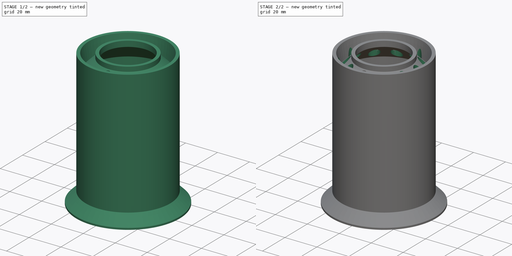
[diagram: build sequence overview — one tinted view per stage of 2, left to right]
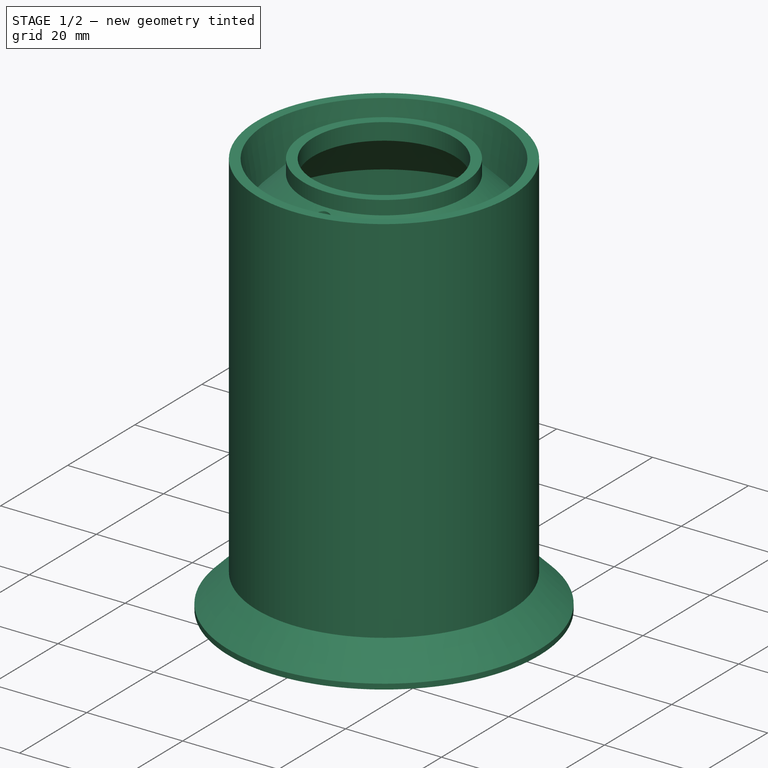
[diagram: stage 1 of 2 — iso view after this stage's code; geometry added in this stage tinted green]
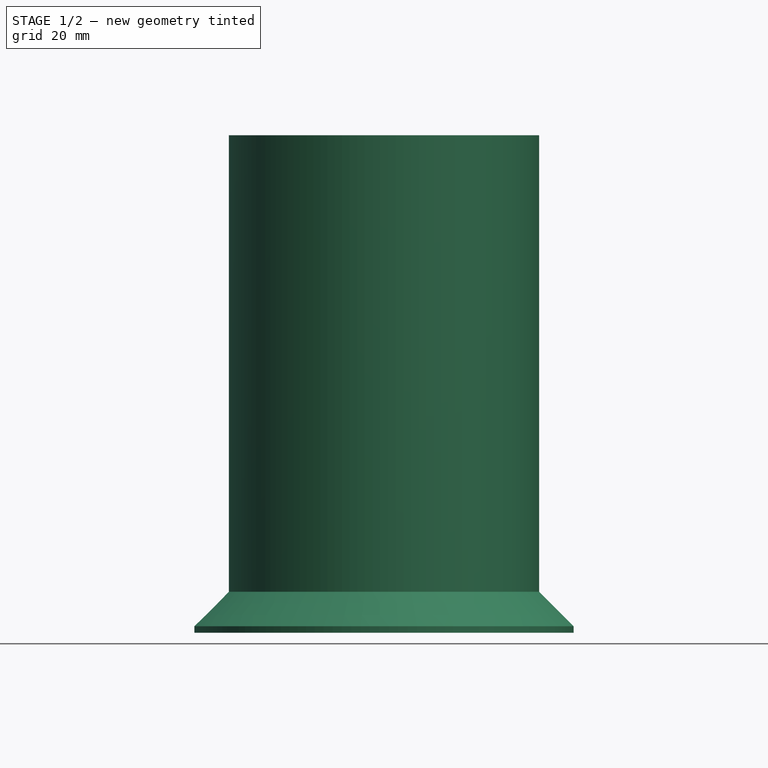
[diagram: stage 1 of 2 — front view after this stage's code; geometry added in this stage tinted green]
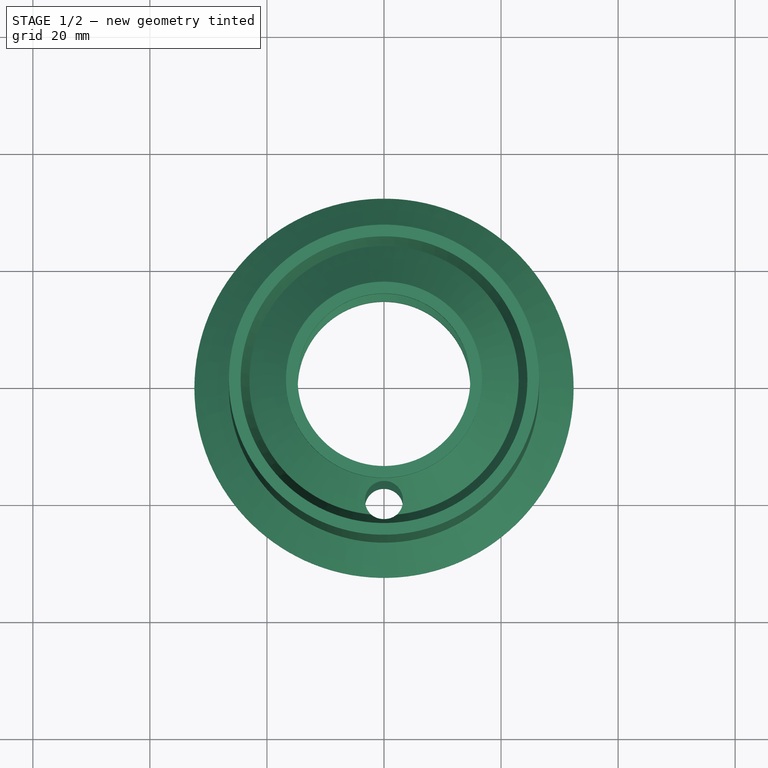
[diagram: stage 1 of 2 — top view after this stage's code; geometry added in this stage tinted green]
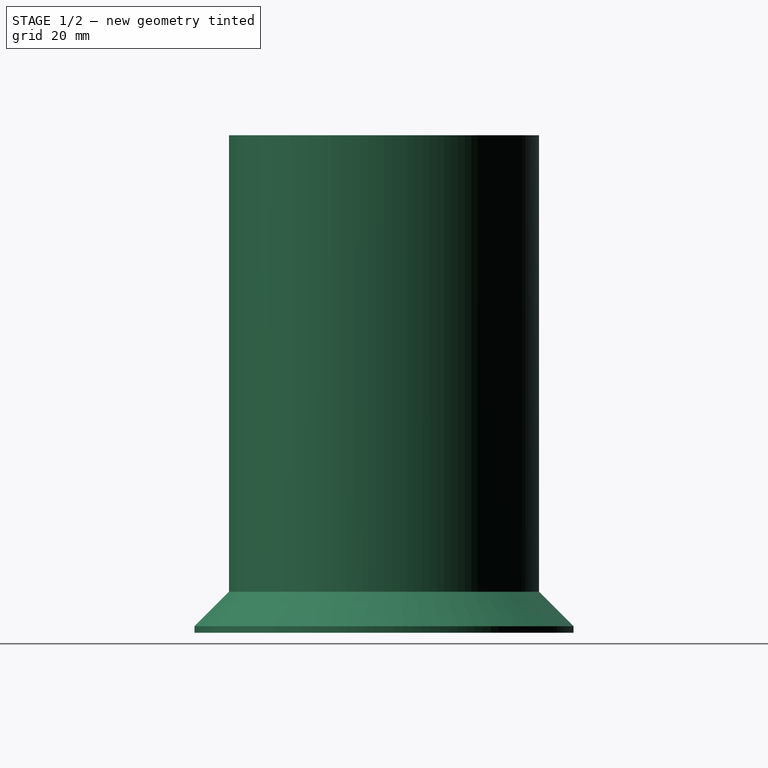
[diagram: stage 1 of 2 — right view after this stage's code; geometry added in this stage tinted green]
FCSTD DOCUMENT  (FreeCAD 0.17R12871 (Git))
Label: 3dp7BaseColorHome
License: All rights reserved
LicenseURL: http://en.wikipedia.org/wiki/All_rights_reserved
objects: Sketcher::SketchObject×2, PartDesign::Revolution×1, PartDesign::Pocket×1, PartDesign::PolarPattern×1, PartDesign::Body×1
note: 8 computed .brp shape members not serialized (recipe doc carries the construction recipe); baked Part::Feature solids carry a one-line shape summary decoded from their .brp

FEATURE [Sketcher::SketchObject] Sketch
  MapMode = 5
  Placement = pos=(0,0,0) rot=(1,0,0;1.5708rad)
  Support = -> [XZ_Plane]
  expr: Constraints[48] = -45
  sketch-geometry (20):
    g0: LineSegment StartX=14.75 StartY=0 StartZ=0 EndX=14.75 EndY=3.5 EndZ=0
    g1: LineSegment StartX=14.75 StartY=85 StartZ=0 EndX=16.75 EndY=85 EndZ=0
    g2: LineSegment StartX=16.75 StartY=85 StartZ=0 EndX=16.75 EndY=82.1 EndZ=0
    g3: LineSegment StartX=16.75 StartY=82.1 StartZ=0 EndX=23 EndY=75.85 EndZ=0
    g4: LineSegment StartX=23 StartY=75.85 StartZ=0 EndX=24.5 EndY=85 EndZ=0
    g5: LineSegment StartX=24.5 StartY=85 StartZ=0 EndX=26.5 EndY=85 EndZ=0
    g6: LineSegment StartX=26.5 StartY=85 StartZ=0 EndX=26.5 EndY=7 EndZ=0
    g7: LineSegment StartX=23 StartY=9.15 StartZ=0 EndX=16.75 EndY=2.9 EndZ=0
    g8: LineSegment StartX=16.75 StartY=2.9 StartZ=0 EndX=16.75 EndY=0 EndZ=0
    g9: LineSegment StartX=16.75 StartY=0 StartZ=0 EndX=14.75 EndY=0 EndZ=0
    g10: LineSegment StartX=14.75 StartY=81.5 StartZ=0 EndX=24.9 EndY=71.35 EndZ=0
    g11: LineSegment StartX=24.9 StartY=71.35 StartZ=0 EndX=24.9 EndY=13.65 EndZ=0
    g12: LineSegment StartX=24.9 StartY=13.65 StartZ=0 EndX=14.75 EndY=3.5 EndZ=0
    g13: LineSegment [constr] StartX=23 StartY=75.85 StartZ=0 EndX=23 EndY=9.15 EndZ=0
    g14: LineSegment StartX=14.75 StartY=81.5 StartZ=0 EndX=14.75 EndY=85 EndZ=0
    g15: LineSegment [constr] StartX=14.75 StartY=81.5 StartZ=0 EndX=14.75 EndY=3.5 EndZ=0
    g16: LineSegment StartX=29.4 StartY=0 StartZ=0 EndX=23 EndY=9.15 EndZ=0
    g17: LineSegment StartX=26.5 StartY=7 StartZ=0 EndX=32.4 EndY=1.1 EndZ=0
    g18: LineSegment StartX=32.4 StartY=1.1 StartZ=0 EndX=32.4 EndY=0 EndZ=0
    g19: LineSegment StartX=29.4 StartY=0 StartZ=0 EndX=32.4 EndY=0 EndZ=0
  constraints (58):
    c: PointOnObject(g0,g-1)
    c: Vertical(g0)
    c: Coincident(g14,g1)
    c: Horizontal(g1)
    c: Coincident(g1,g2)
    c: Coincident(g2,g3)
    c: Coincident(g3,g4)
    c: Coincident(g4,g5)
    c: Coincident(g5,g6)
    c: Vertical(g6)
    c: Coincident(g7,g8)
    c: PointOnObject(g8,g-1)
    c: Coincident(g8,g9)
    c: Coincident(g9,g0)
    c: Horizontal(g5)
    c: Vertical(g2)
    c: Vertical(g8)
    c: Equal(g8,g2)
    c: Equal(g9,g1)
    c: Coincident(g10,g11)
    c: Vertical(g11)
    c: Coincident(g11,g12)
    c: Parallel(g10,g3)
    c: Parallel(g12,g7)
    c: Coincident(g13,g3)
    c: Vertical(g13)
    c: Angle(g3) = -0.785398
    c: DistanceY(g2,g2) = 2.9
    c: DistanceX(g1,g1) = 2
    c: DistanceX(g5,g5) = 2
    c: Coincident(g0,g12)
    c: Coincident(g14,g10)
    c: DistanceX(g-1,g0) = 14.75
    c: Coincident(g15,g10)
    c: Coincident(g15,g0)
    c: Vertical(g15)
    c: DistanceY(g1,g4) = 0
    c: Vertical(g14)
    c: Equal(g0,g14)
    c: DistanceY(g14,g14) = 3.5
    c: PointOnObject(g16,g-1)
    c: Coincident(g16,g7)
    c: Coincident(g13,g7)
    c: Angle(g7) = -2.35619
    c: DistanceX(g-1,g3) = 23
    c: Coincident(g17,g18)
    c: Vertical(g18)
    c: Coincident(g6,g17)
    c: Angle(g17) = -0.785398
    c: Coincident(g19,g16)
    c: Coincident(g19,g18)
    c: Horizontal(g19)
    c: DistanceY(g18,g18) = 1.1
    c: DistanceY(g-1,g6) = 7
    c: DistanceY(g-1,g5) = 85
    c: DistanceX(g16,g18) = 3
    c: DistanceX(g-1,g6) = 26.5
    c: DistanceX(g10,g5) = 1.6
FEATURE [PartDesign::Revolution] Revolution
  Angle = 360
  Axis = (0,0,1)
  Base = (0,0,0)
  Placement = pos=(0,0,0) rot=(1,0,0;1.5708rad)
  Profile = -> Sketch
  ReferenceAxis = -> Sketch [V_Axis]
  Reversed = true
FEATURE [Sketcher::SketchObject] Sketch001
  MapMode = 5
  Placement = pos=(0,0,0) rot=(1,0,0;-3.14159rad)
  Support = -> [Revolution]
  sketch-geometry (1):
    g0: Circle CenterX=0 CenterY=20.5 CenterZ=0 NormalX=0 NormalY=0 NormalZ=1 AngleXU=0 Radius=3.25
  constraints (3):
    c: PointOnObject(g0,g-2)
    c: DistanceY(g-1,g0) = 20.5
    c: Radius(g0) = 3.25
FEATURE [PartDesign::Pocket] Pocket
  BaseFeature = -> Revolution
  Length = 5
  Placement = pos=(0,0,0) rot=(1,0,0;1.5708rad)
  Profile = -> Sketch001
  Type = 1
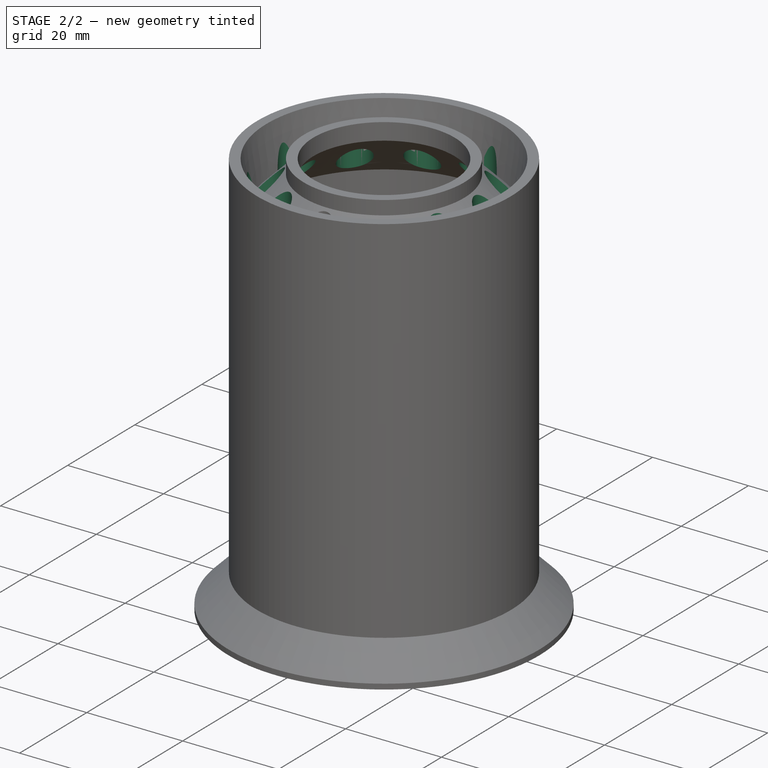
[diagram: stage 2 of 2 — iso view after this stage's code; geometry added in this stage tinted green]
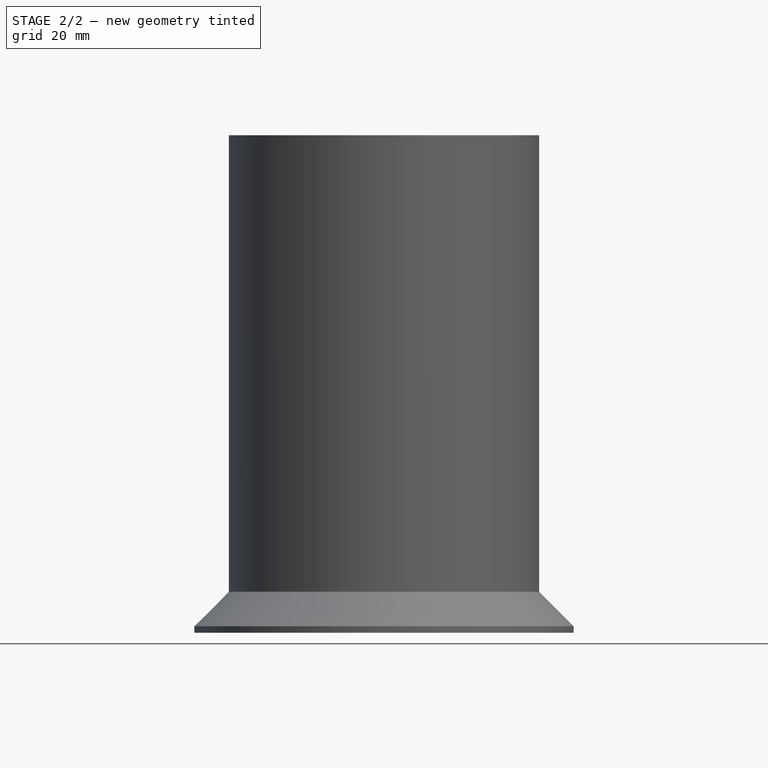
[diagram: stage 2 of 2 — front view after this stage's code; geometry added in this stage tinted green]
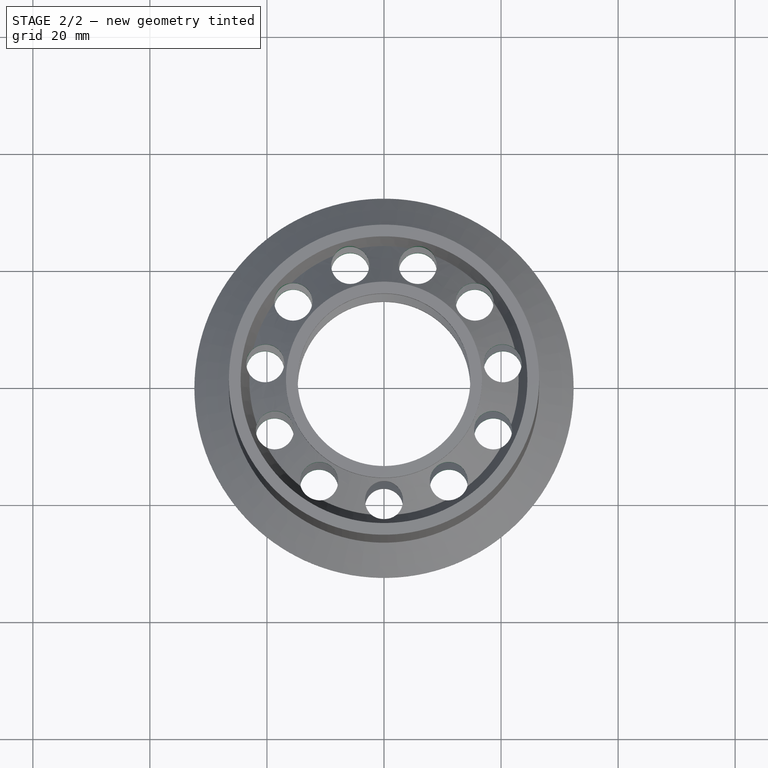
[diagram: stage 2 of 2 — top view after this stage's code; geometry added in this stage tinted green]
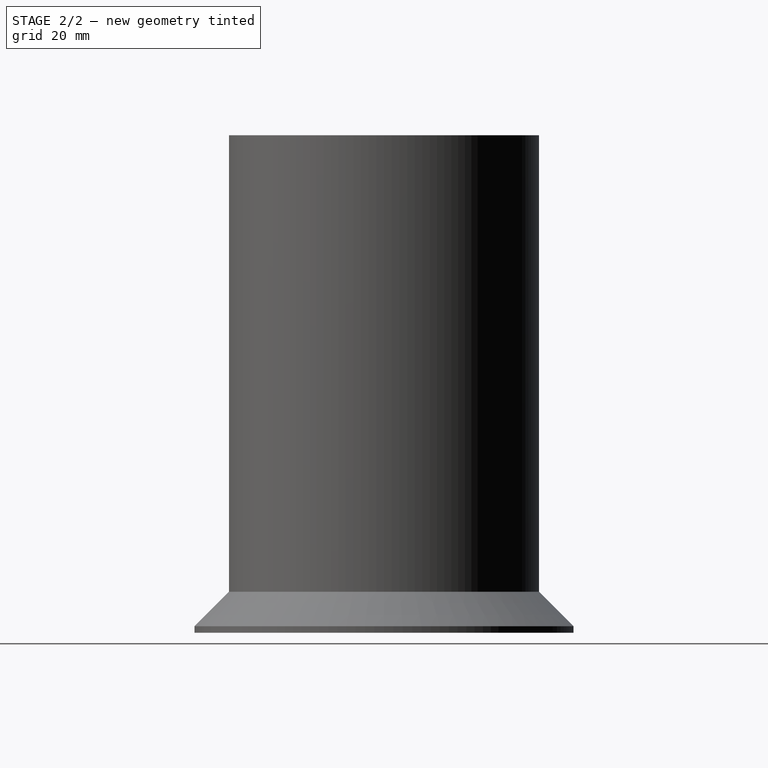
[diagram: stage 2 of 2 — right view after this stage's code; geometry added in this stage tinted green]
FEATURE [PartDesign::PolarPattern] PolarPattern
  Angle = 360
  Axis = -> Sketch001 [N_Axis]
  Occurrences = 11
  Originals = -> [Pocket]
  Placement = pos=(0,0,0) rot=(1,0,0;1.5708rad)
FEATURE [PartDesign::Body] Body
  Group = -> [Sketch,Revolution,Sketch001,Pocket,PolarPattern]
  Origin = -> Origin
  Tip = -> PolarPattern
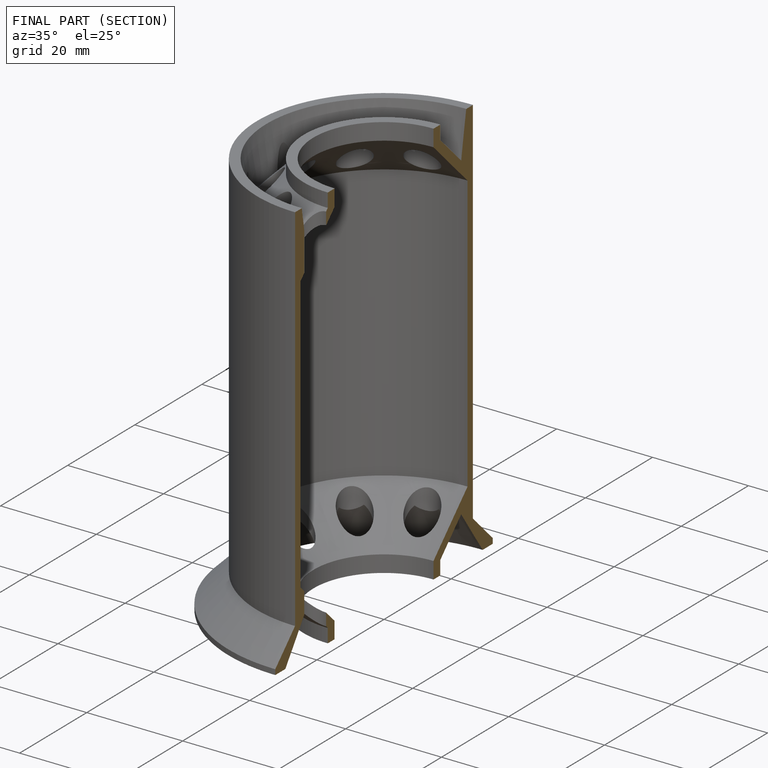
[diagram: finished part — half-section view (interior)]
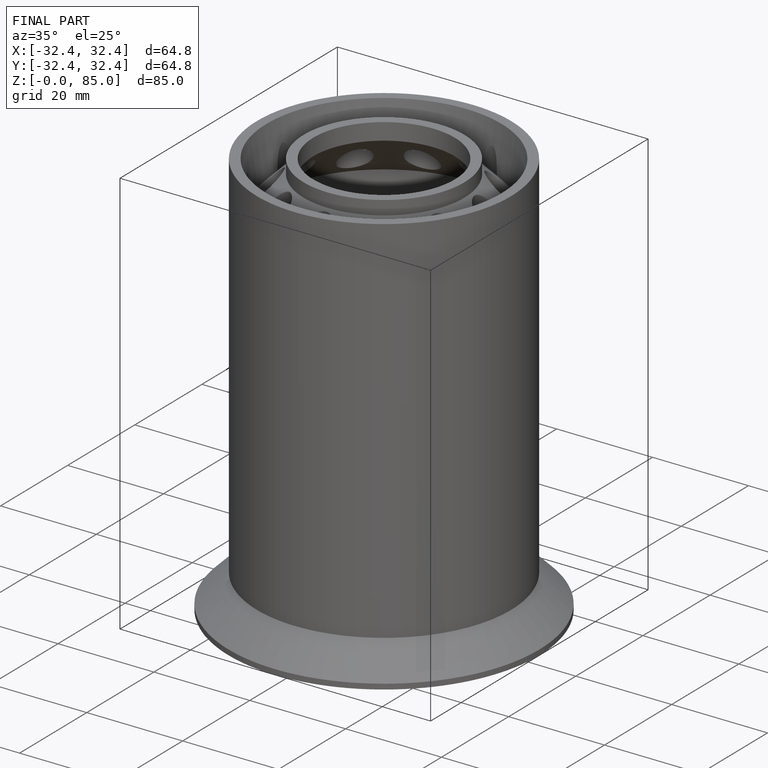
[diagram: finished part — iso view with bounding-box wireframe]
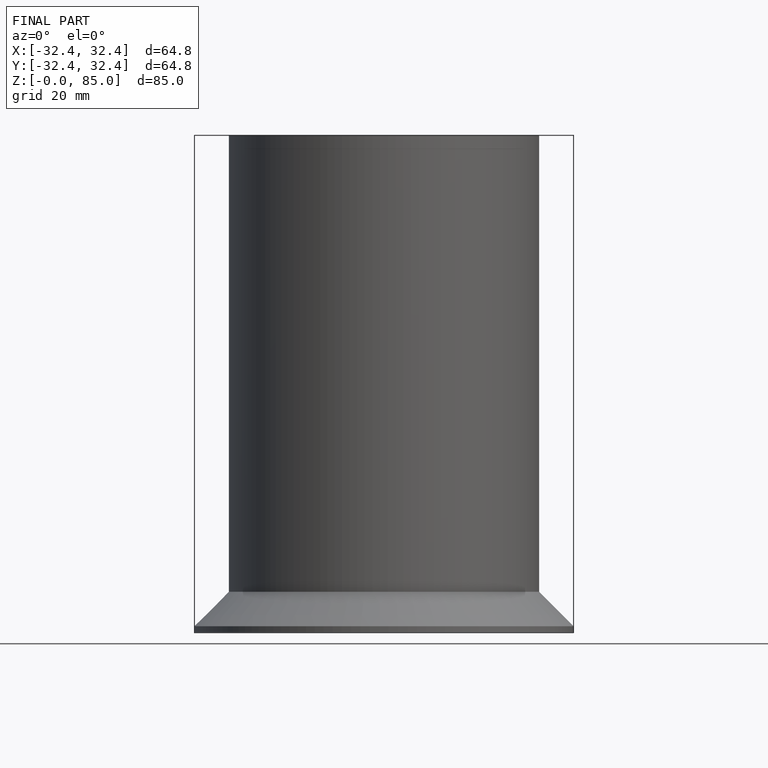
[diagram: finished part — front view with bounding-box wireframe]
